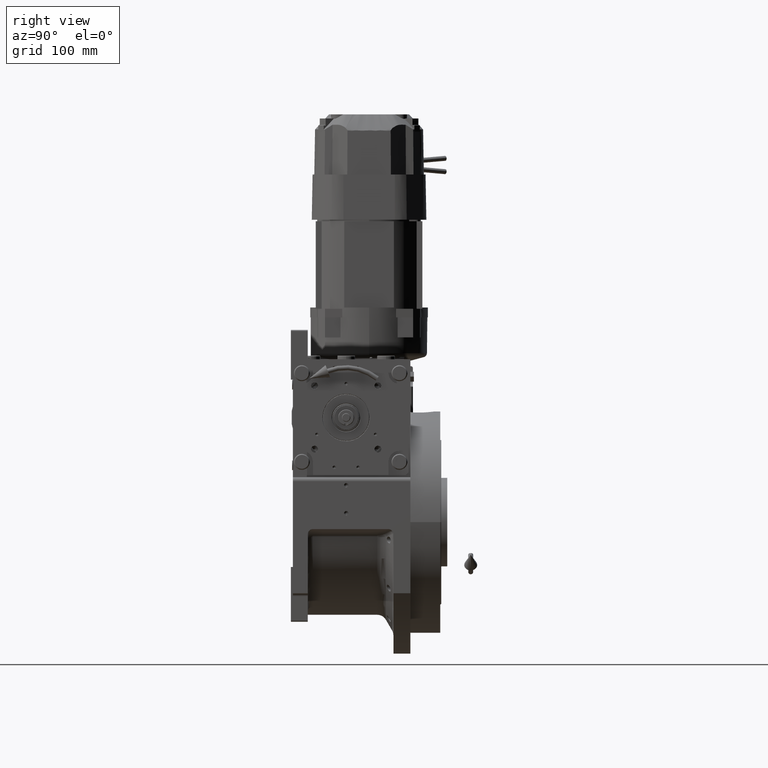
[diagram: clean part render]
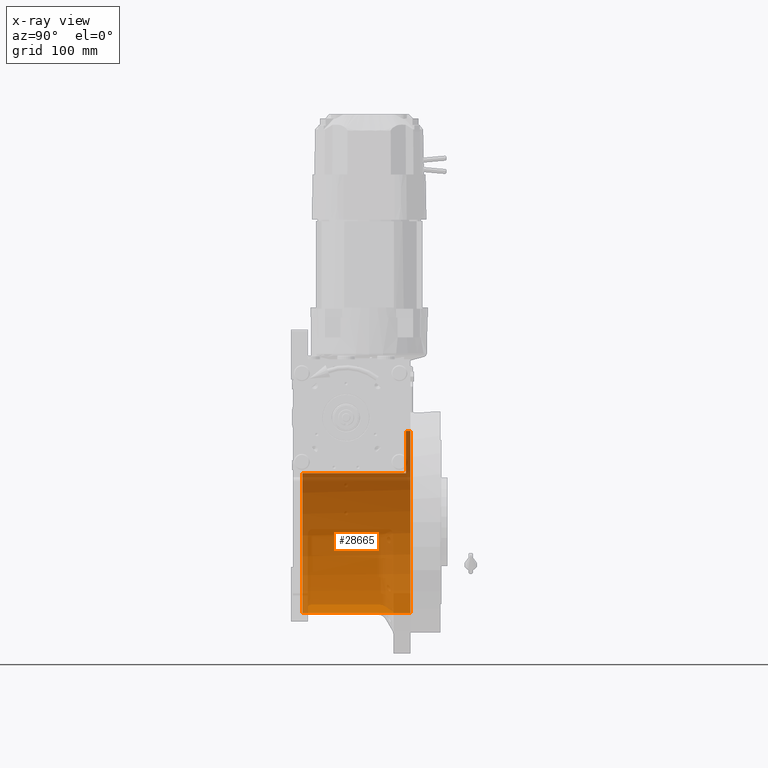
[diagram: x-ray — body ghosted, one internal face saturated and labeled with its STEP entity id]
A machine part, right view, then the same camera in x-ray: the body is ghosted and one INTERNAL B-rep face — a face not visible from any outside direction — is saturated and labeled: STEP entity #28665.
In plain terms, the highlighted cylindrical surface (partial cylindrical patch) has radius 91.5 mm, axis along (0, -1, 0).
Its self-contained STEP definition (entity closure, byte-faithful):
#4349 = CARTESIAN_POINT ( 'NONE',  ( 0.000000000000000000, 60.00000000000000000, 0.000000000000000000 ) ) ;
#5769 = EDGE_CURVE ( 'NONE', #57442, #63270, #72655, .T. ) ;
#5842 = ORIENTED_EDGE ( 'NONE', *, *, #5769, .F. ) ;
#6250 = CARTESIAN_POINT ( 'NONE',  ( -77.27386362800814368, -44.00000000000000000, 49.00000000000000000 ) ) ;
#7883 = EDGE_CURVE ( 'NONE', #63270, #13583, #60991, .T. ) ;
#8858 = VERTEX_POINT ( 'NONE', #44187 ) ;
#13583 = VERTEX_POINT ( 'NONE', #6250 ) ;
#15517 = DIRECTION ( 'NONE',  ( 0.000000000000000000, -1.000000000000000000, 0.000000000000000000 ) ) ;
#15838 = ORIENTED_EDGE ( 'NONE', *, *, #65432, .F. ) ;
#15905 = DIRECTION ( 'NONE',  ( 0.000000000000000000, 1.000000000000000000, 0.000000000000000000 ) ) ;
#16576 = DIRECTION ( 'NONE',  ( -0.000000000000000000, -1.000000000000000000, -0.000000000000000000 ) ) ;
#17287 = EDGE_CURVE ( 'NONE', #65989, #8858, #28034, .T. ) ;
#21617 = FACE_OUTER_BOUND ( 'NONE', #38049, .T. ) ;
#22646 = EDGE_CURVE ( 'NONE', #13583, #67937, #58065, .T. ) ;
#23858 = AXIS2_PLACEMENT_3D ( 'NONE', #93162, #15905, #95173 ) ;
#28034 = LINE ( 'NONE', #36130, #81772 ) ;
#28665 = ADVANCED_FACE ( 'NONE', ( #21617 ), #84729, .F. ) ;
#31853 = CIRCLE ( 'NONE', #64092, 91.50000000000000000 ) ;
#32183 = CARTESIAN_POINT ( 'NONE',  ( 0.000000000000000000, 64.50000000000000000, -91.50000000000000000 ) ) ;
#33210 = CARTESIAN_POINT ( 'NONE',  ( 0.000000000000000000, 64.50000000000000000, 0.000000000000000000 ) ) ;
#35883 = CARTESIAN_POINT ( 'NONE',  ( 0.000000000000000000, -44.00000000000000000, -91.50000000000000000 ) ) ;
#36130 = CARTESIAN_POINT ( 'NONE',  ( 1.120551821219827868E-14, 69.00000000000004263, 91.50000000000000000 ) ) ;
#38049 = EDGE_LOOP ( 'NONE', ( #66702, #46761, #15838, #41865, #42905, #5842 ) ) ;
#41865 = ORIENTED_EDGE ( 'NONE', *, *, #22646, .F. ) ;
#42905 = ORIENTED_EDGE ( 'NONE', *, *, #7883, .F. ) ;
#43361 = CARTESIAN_POINT ( 'NONE',  ( -77.27386362800812947, 69.00000000000004263, 48.99999999999998579 ) ) ;
#44187 = CARTESIAN_POINT ( 'NONE',  ( 1.120551821219827868E-14, 60.00000000000000000, 91.50000000000000000 ) ) ;
#46517 = VECTOR ( 'NONE', #67101, 1000.000000000000000 ) ;
#46761 = ORIENTED_EDGE ( 'NONE', *, *, #17287, .T. ) ;
#48106 = AXIS2_PLACEMENT_3D ( 'NONE', #60486, #15517, #99887 ) ;
#49295 = DIRECTION ( 'NONE',  ( 0.000000000000000000, 1.000000000000000000, 0.000000000000000000 ) ) ;
#50305 = DIRECTION ( 'NONE',  ( 0.000000000000000000, -1.000000000000000000, 0.000000000000000000 ) ) ;
#50418 = DIRECTION ( 'NONE',  ( 0.000000000000000000, -1.000000000000000000, 0.000000000000000000 ) ) ;
#55924 = CARTESIAN_POINT ( 'NONE',  ( 1.120551821219827868E-14, 64.50000000000000000, 91.50000000000000000 ) ) ;
#57442 = VERTEX_POINT ( 'NONE', #32183 ) ;
#58065 = LINE ( 'NONE', #43361, #46517 ) ;
#58506 = CARTESIAN_POINT ( 'NONE',  ( 0.000000000000000000, 69.00000000000004263, -91.50000000000000000 ) ) ;
#60486 = CARTESIAN_POINT ( 'NONE',  ( 0.000000000000000000, 69.00000000000004263, 0.000000000000000000 ) ) ;
#60991 = CIRCLE ( 'NONE', #23858, 91.50000000000000000 ) ;
#63270 = VERTEX_POINT ( 'NONE', #35883 ) ;
#64092 = AXIS2_PLACEMENT_3D ( 'NONE', #4349, #49295, #80117 ) ;
#65432 = EDGE_CURVE ( 'NONE', #67937, #8858, #31853, .T. ) ;
#65989 = VERTEX_POINT ( 'NONE', #55924 ) ;
#66118 = VECTOR ( 'NONE', #50418, 1000.000000000000000 ) ;
#66702 = ORIENTED_EDGE ( 'NONE', *, *, #94797, .F. ) ;
#67101 = DIRECTION ( 'NONE',  ( -0.000000000000000000, 1.000000000000000000, -0.000000000000000000 ) ) ;
#67937 = VERTEX_POINT ( 'NONE', #87995 ) ;
#72655 = LINE ( 'NONE', #58506, #66118 ) ;
#76437 = AXIS2_PLACEMENT_3D ( 'NONE', #33210, #16576, #94321 ) ;
#80117 = DIRECTION ( 'NONE',  ( 1.776356839400250465E-15, 0.000000000000000000, -1.000000000000000000 ) ) ;
#81772 = VECTOR ( 'NONE', #50305, 1000.000000000000000 ) ;
#84729 = CYLINDRICAL_SURFACE ( 'NONE', #48106, 91.50000000000000000 ) ;
#87995 = CARTESIAN_POINT ( 'NONE',  ( -77.27386362800814368, 60.00000000000000000, 48.99999999999998579 ) ) ;
#93162 = CARTESIAN_POINT ( 'NONE',  ( 0.000000000000000000, -44.00000000000000000, 0.000000000000000000 ) ) ;
#94321 = DIRECTION ( 'NONE',  ( 0.000000000000000000, 0.000000000000000000, 1.000000000000000000 ) ) ;
#94797 = EDGE_CURVE ( 'NONE', #65989, #57442, #97434, .T. ) ;
#95173 = DIRECTION ( 'NONE',  ( 0.000000000000000000, 0.000000000000000000, 1.000000000000000000 ) ) ;
#97434 = CIRCLE ( 'NONE', #76437, 91.50000000000000000 ) ;
#99887 = DIRECTION ( 'NONE',  ( 0.000000000000000000, 0.000000000000000000, -1.000000000000000000 ) ) ;